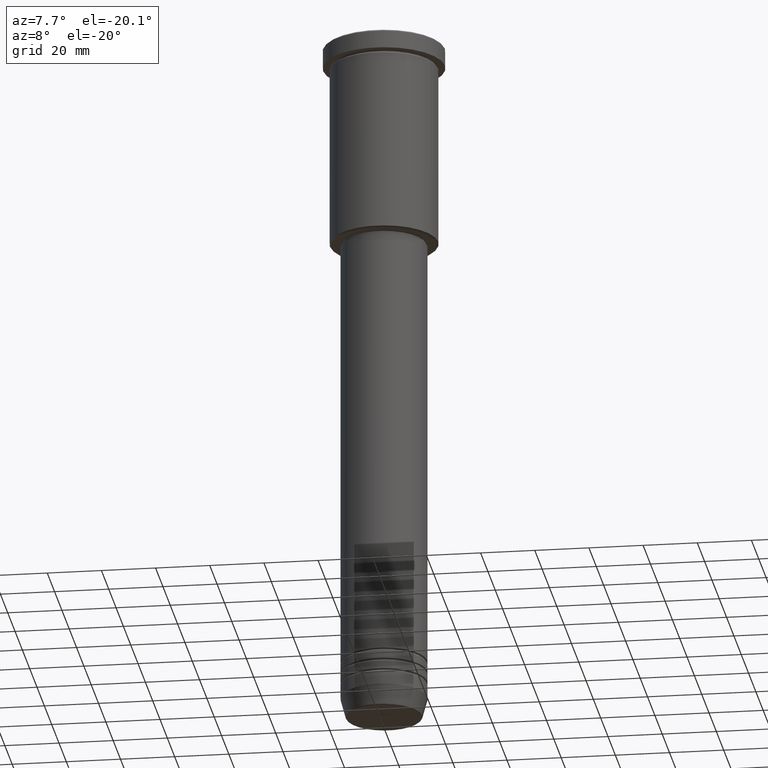
[diagram: clean part render]
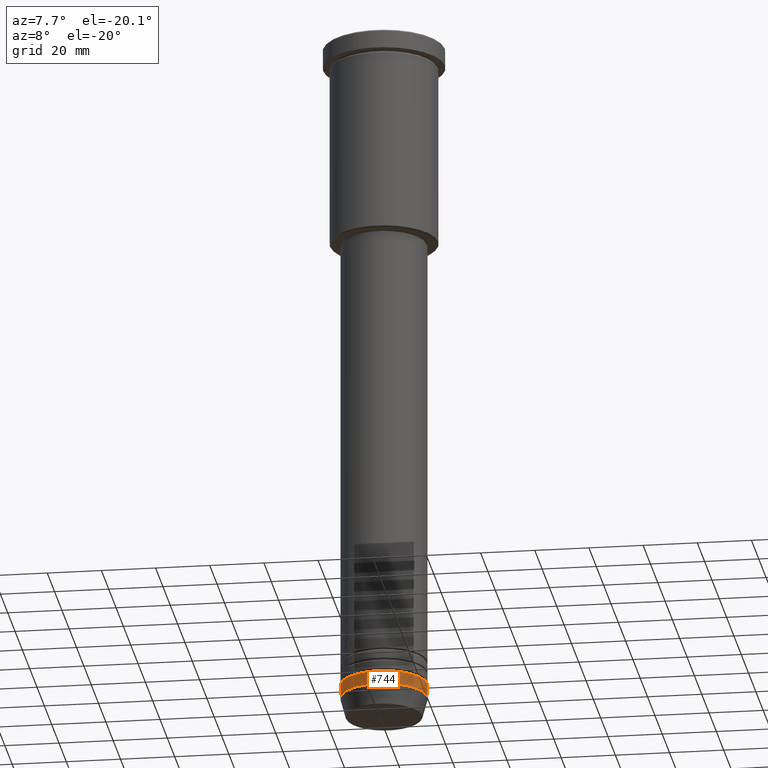
[diagram: same view with one face highlighted and labeled with its STEP entity id]
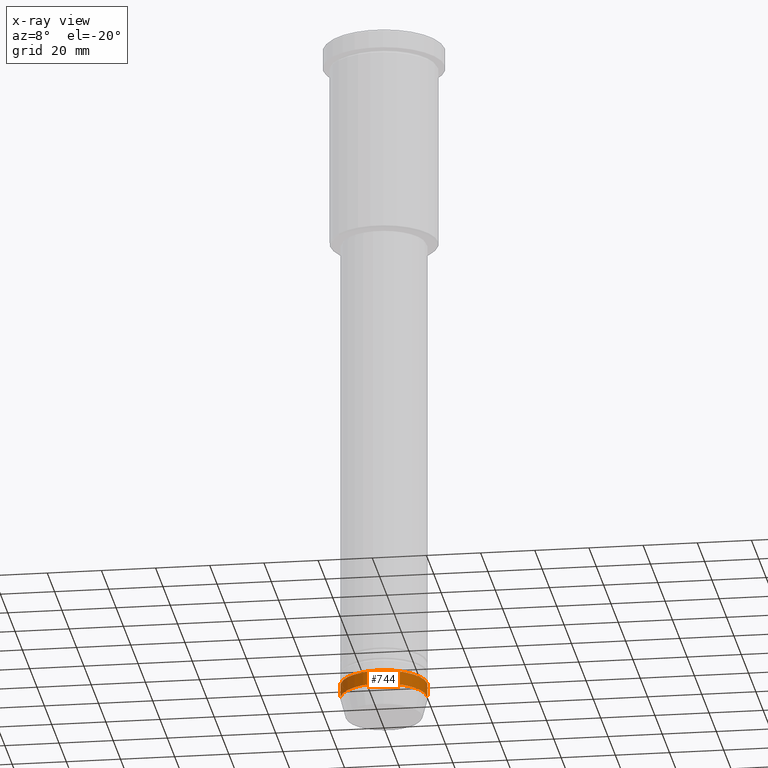
[diagram: x-ray of the same camera — body ghosted, the highlighted face saturated]
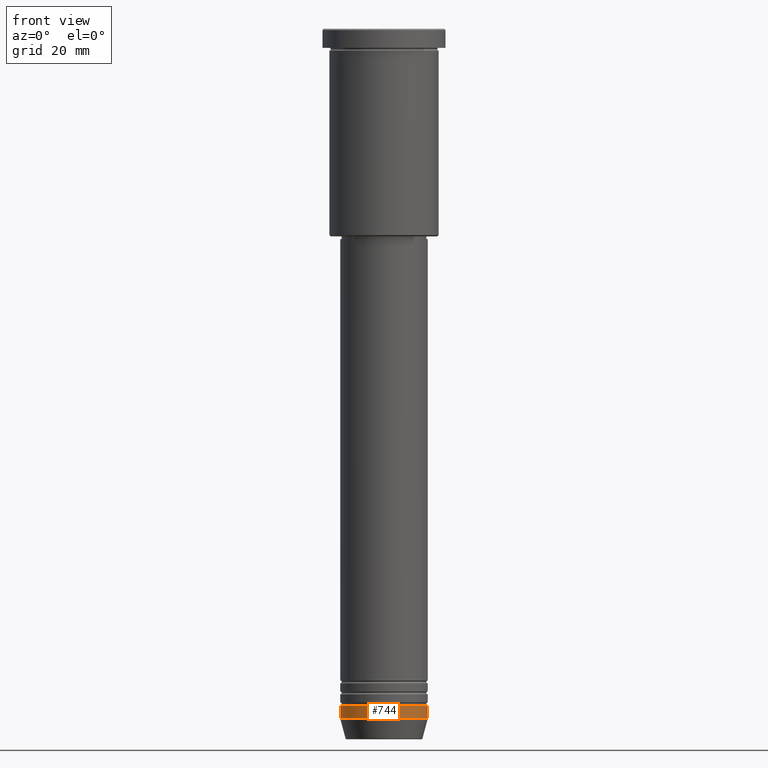
[diagram: same view with one face highlighted and labeled with its STEP entity id]
A machine part, auxiliary view. The second image highlights one B-rep face of the part: STEP entity #744.
The next image is the same camera in x-ray: the body ghosted, the highlighted face saturated — about 0% of this face is hidden behind the body in this view.
A second angle (front view) of the same face is appended — the face is thin or edge-on in the first view.
In plain terms, the highlighted cylindrical surface (partial cylindrical patch) has radius 16 mm, axis along (-0, -0, 1).
Its self-contained STEP definition (entity closure, byte-faithful):
#14 = VERTEX_POINT ( 'NONE', #158 ) ;
#19 = ORIENTED_EDGE ( 'NONE', *, *, #374, .T. ) ;
#41 = EDGE_CURVE ( 'NONE', #14, #231, #714, .T. ) ;
#44 = DIRECTION ( 'NONE',  ( -0.000000000000000000, -0.000000000000000000, 1.000000000000000000 ) ) ;
#64 = CARTESIAN_POINT ( 'NONE',  ( 16.00000000000000000, 0.000000000000000000, -252.5000000000000000 ) ) ;
#75 = CYLINDRICAL_SURFACE ( 'NONE', #1002, 16.00000000000000000 ) ;
#76 = DIRECTION ( 'NONE',  ( -0.000000000000000000, -0.000000000000000000, 1.000000000000000000 ) ) ;
#158 = CARTESIAN_POINT ( 'NONE',  ( -16.00000000000000000, 1.959434878635765131E-15, -252.5000000000000000 ) ) ;
#164 = DIRECTION ( 'NONE',  ( -0.000000000000000000, -0.000000000000000000, 1.000000000000000000 ) ) ;
#231 = VERTEX_POINT ( 'NONE', #1094 ) ;
#266 = LINE ( 'NONE', #639, #312 ) ;
#271 = CARTESIAN_POINT ( 'NONE',  ( 16.00000000000000000, 0.000000000000000000, -247.5000000000000000 ) ) ;
#312 = VECTOR ( 'NONE', #588, 1000.000000000000000 ) ;
#374 = EDGE_CURVE ( 'NONE', #14, #715, #808, .T. ) ;
#493 = AXIS2_PLACEMENT_3D ( 'NONE', #995, #713, #703 ) ;
#521 = VECTOR ( 'NONE', #76, 1000.000000000000000 ) ;
#544 = VERTEX_POINT ( 'NONE', #271 ) ;
#588 = DIRECTION ( 'NONE',  ( -0.000000000000000000, -0.000000000000000000, 1.000000000000000000 ) ) ;
#639 = CARTESIAN_POINT ( 'NONE',  ( 16.00000000000000000, 0.000000000000000000, 0.000000000000000000 ) ) ;
#675 = EDGE_CURVE ( 'NONE', #231, #544, #1167, .T. ) ;
#703 = DIRECTION ( 'NONE',  ( 1.000000000000000000, 0.000000000000000000, 0.000000000000000000 ) ) ;
#713 = DIRECTION ( 'NONE',  ( -0.000000000000000000, -0.000000000000000000, 1.000000000000000000 ) ) ;
#714 = LINE ( 'NONE', #899, #521 ) ;
#715 = VERTEX_POINT ( 'NONE', #64 ) ;
#744 = ADVANCED_FACE ( 'NONE', ( #903 ), #75, .T. ) ;
#778 = DIRECTION ( 'NONE',  ( 1.000000000000000000, 0.000000000000000000, 0.000000000000000000 ) ) ;
#808 = CIRCLE ( 'NONE', #1129, 16.00000000000000000 ) ;
#859 = EDGE_CURVE ( 'NONE', #715, #544, #266, .T. ) ;
#884 = DIRECTION ( 'NONE',  ( 1.000000000000000000, 0.000000000000000000, 0.000000000000000000 ) ) ;
#899 = CARTESIAN_POINT ( 'NONE',  ( -16.00000000000000000, 1.959434878635765131E-15, 0.000000000000000000 ) ) ;
#903 = FACE_OUTER_BOUND ( 'NONE', #1175, .T. ) ;
#957 = CARTESIAN_POINT ( 'NONE',  ( 0.000000000000000000, 0.000000000000000000, -252.5000000000000000 ) ) ;
#961 = ORIENTED_EDGE ( 'NONE', *, *, #859, .T. ) ;
#995 = CARTESIAN_POINT ( 'NONE',  ( 0.000000000000000000, 0.000000000000000000, -247.5000000000000000 ) ) ;
#1002 = AXIS2_PLACEMENT_3D ( 'NONE', #1165, #164, #884 ) ;
#1094 = CARTESIAN_POINT ( 'NONE',  ( -16.00000000000000000, 1.959434878635765131E-15, -247.5000000000000000 ) ) ;
#1129 = AXIS2_PLACEMENT_3D ( 'NONE', #957, #44, #778 ) ;
#1161 = ORIENTED_EDGE ( 'NONE', *, *, #41, .F. ) ;
#1165 = CARTESIAN_POINT ( 'NONE',  ( 0.000000000000000000, 0.000000000000000000, 0.000000000000000000 ) ) ;
#1167 = CIRCLE ( 'NONE', #493, 16.00000000000000000 ) ;
#1168 = ORIENTED_EDGE ( 'NONE', *, *, #675, .F. ) ;
#1175 = EDGE_LOOP ( 'NONE', ( #1161, #19, #961, #1168 ) ) ;